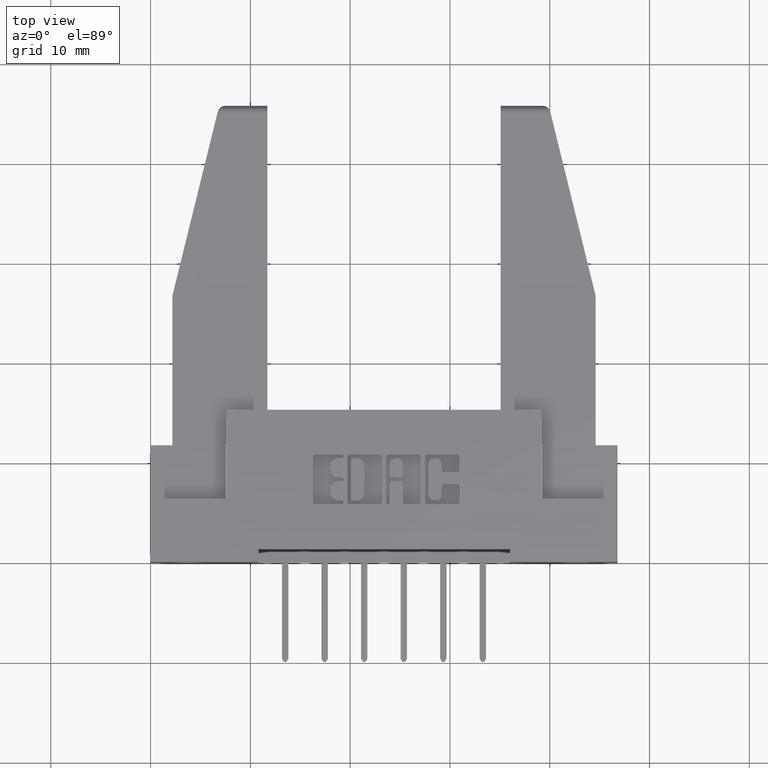
[diagram: clean part render]
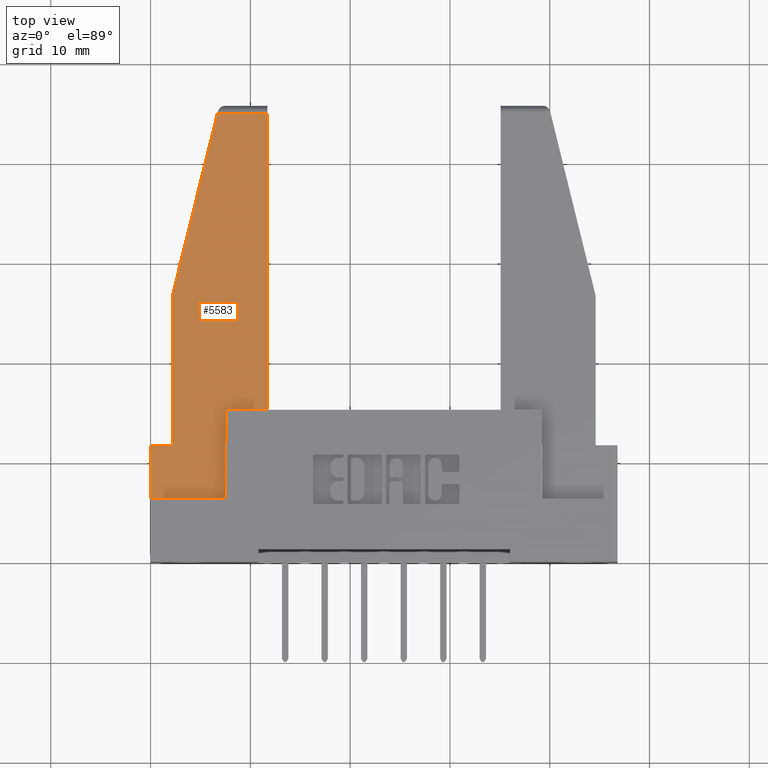
[diagram: same view with one face highlighted and labeled with its STEP entity id]
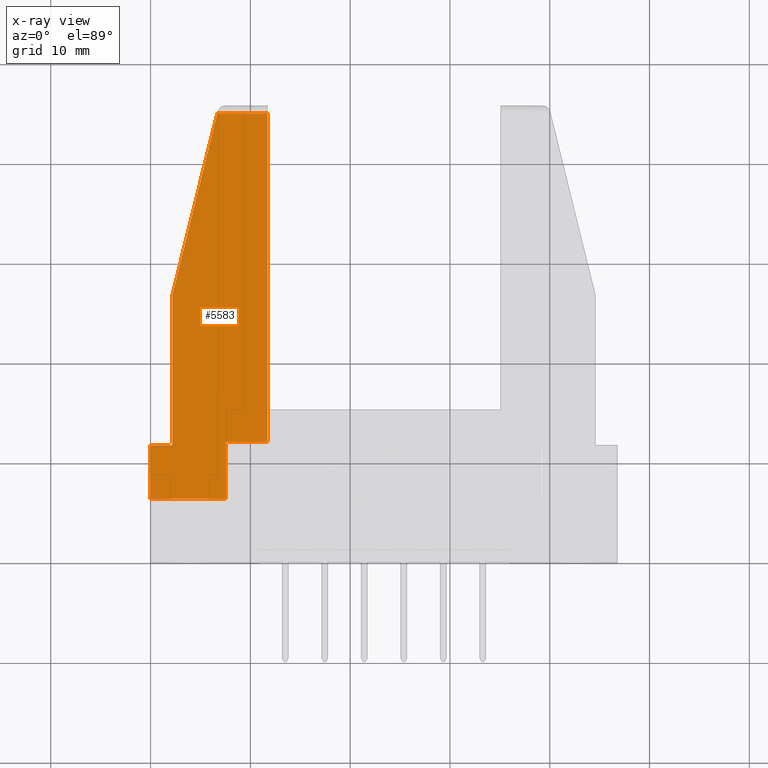
[diagram: x-ray of the same camera — body ghosted, the highlighted face saturated]
A machine part, top view. The second image highlights one B-rep face of the part: STEP entity #5583.
The next image is the same camera in x-ray: the body ghosted, the highlighted face saturated — about 0% of this face is hidden behind the body in this view.
In plain terms, the highlighted planar face has unit normal (0, 0, 1).
Its self-contained STEP definition (entity closure, byte-faithful):
#2 = VERTEX_POINT ( 'NONE', #8088 ) ;
#62 = DIRECTION ( 'NONE',  ( -0.0000000000000000000, 0.0000000000000000000, 1.000000000000000000 ) ) ;
#100 = VERTEX_POINT ( 'NONE', #4619 ) ;
#213 = VECTOR ( 'NONE', #4187, 39.37007874015748900 ) ;
#431 = AXIS2_PLACEMENT_3D ( 'NONE', #2852, #62, #8154 ) ;
#521 = DIRECTION ( 'NONE',  ( 0.0000000000000000000, 1.000000000000000000, 0.0000000000000000000 ) ) ;
#879 = CARTESIAN_POINT ( 'NONE',  ( -7.582401355855259500E-033, 1.520000000000000200, 0.0000000000000000000 ) ) ;
#1002 = LINE ( 'NONE', #879, #8183 ) ;
#1033 = VECTOR ( 'NONE', #521, 39.37007874015748100 ) ;
#1069 = CARTESIAN_POINT ( 'NONE',  ( 0.08600000000000011800, 0.2099999999999999400, 0.0000000000000000000 ) ) ;
#1161 = EDGE_CURVE ( 'NONE', #10061, #6131, #8447, .T. ) ;
#1418 = DIRECTION ( 'NONE',  ( -1.000000000000000000, -0.0000000000000000000, -0.0000000000000000000 ) ) ;
#2122 = LINE ( 'NONE', #3268, #6450 ) ;
#2125 = CARTESIAN_POINT ( 'NONE',  ( 5.427945026982818800E-017, 0.2099999999999999400, 0.0000000000000000000 ) ) ;
#2226 = VERTEX_POINT ( 'NONE', #10677 ) ;
#2852 = CARTESIAN_POINT ( 'NONE',  ( -7.582401355855259500E-033, 0.0000000000000000000, 0.0000000000000000000 ) ) ;
#2948 = LINE ( 'NONE', #8715, #11348 ) ;
#3061 = ORIENTED_EDGE ( 'NONE', *, *, #8023, .T. ) ;
#3265 = VERTEX_POINT ( 'NONE', #1069 ) ;
#3268 = CARTESIAN_POINT ( 'NONE',  ( 0.2969999999999999900, 0.2230000000000000300, 0.0000000000000000000 ) ) ;
#3373 = EDGE_CURVE ( 'NONE', #2, #9080, #2122, .T. ) ;
#3642 = ORIENTED_EDGE ( 'NONE', *, *, #11245, .T. ) ;
#3676 = EDGE_CURVE ( 'NONE', #100, #3265, #2948, .T. ) ;
#3797 = PLANE ( 'NONE',  #431 ) ;
#4187 = DIRECTION ( 'NONE',  ( -0.2394884713086026000, -0.9708992080078490100, 0.0000000000000000000 ) ) ;
#4236 = LINE ( 'NONE', #8198, #10131 ) ;
#4341 = CARTESIAN_POINT ( 'NONE',  ( 0.0000000000000000000, 0.0000000000000000000, 0.0000000000000000000 ) ) ;
#4415 = DIRECTION ( 'NONE',  ( -1.000000000000000000, 0.0000000000000000000, -0.0000000000000000000 ) ) ;
#4619 = CARTESIAN_POINT ( 'NONE',  ( 0.08600000000000013200, 0.8000000000000000400, 0.0000000000000000000 ) ) ;
#4811 = VECTOR ( 'NONE', #6683, 39.37007874015748100 ) ;
#5042 = DIRECTION ( 'NONE',  ( 1.000000000000000000, 0.0000000000000000000, 0.0000000000000000000 ) ) ;
#5367 = ORIENTED_EDGE ( 'NONE', *, *, #9909, .T. ) ;
#5373 = LINE ( 'NONE', #8588, #1033 ) ;
#5583 = ADVANCED_FACE ( 'NONE', ( #10896 ), #3797, .T. ) ;
#6036 = VECTOR ( 'NONE', #7981, 39.37007874015748100 ) ;
#6118 = EDGE_CURVE ( 'NONE', #2226, #100, #7517, .T. ) ;
#6131 = VERTEX_POINT ( 'NONE', #11303 ) ;
#6140 = CARTESIAN_POINT ( 'NONE',  ( 0.0000000000000000000, 0.0000000000000000000, 0.0000000000000000000 ) ) ;
#6450 = VECTOR ( 'NONE', #5042, 39.37007874015748100 ) ;
#6496 = VECTOR ( 'NONE', #1418, 39.37007874015748100 ) ;
#6657 = ORIENTED_EDGE ( 'NONE', *, *, #3676, .T. ) ;
#6664 = ORIENTED_EDGE ( 'NONE', *, *, #6118, .T. ) ;
#6683 = DIRECTION ( 'NONE',  ( 5.146661630867112300E-017, 1.000000000000000000, 0.0000000000000000000 ) ) ;
#6691 = VERTEX_POINT ( 'NONE', #9731 ) ;
#6917 = VERTEX_POINT ( 'NONE', #2125 ) ;
#7292 = ORIENTED_EDGE ( 'NONE', *, *, #3373, .T. ) ;
#7463 = CARTESIAN_POINT ( 'NONE',  ( 0.4610000000000000200, 0.2230000000000000300, 0.0000000000000000000 ) ) ;
#7517 = LINE ( 'NONE', #10443, #213 ) ;
#7841 = DIRECTION ( 'NONE',  ( -2.893906772949430800E-017, -1.000000000000000000, 0.0000000000000000000 ) ) ;
#7981 = DIRECTION ( 'NONE',  ( 1.000000000000000000, 0.0000000000000000000, 0.0000000000000000000 ) ) ;
#8023 = EDGE_CURVE ( 'NONE', #6917, #10061, #4236, .T. ) ;
#8088 = CARTESIAN_POINT ( 'NONE',  ( 0.2969999999999999900, 0.2230000000000000300, 0.0000000000000000000 ) ) ;
#8154 = DIRECTION ( 'NONE',  ( 1.000000000000000000, 0.0000000000000000000, 0.0000000000000000000 ) ) ;
#8183 = VECTOR ( 'NONE', #4415, 39.37007874015748100 ) ;
#8198 = CARTESIAN_POINT ( 'NONE',  ( 5.427945026982818800E-017, 0.2099999999999999400, 0.0000000000000000000 ) ) ;
#8342 = ORIENTED_EDGE ( 'NONE', *, *, #9776, .T. ) ;
#8447 = LINE ( 'NONE', #6140, #6036 ) ;
#8588 = CARTESIAN_POINT ( 'NONE',  ( 0.2969999999999999900, 0.0000000000000000000, 0.0000000000000000000 ) ) ;
#8715 = CARTESIAN_POINT ( 'NONE',  ( 0.08600000000000013200, 0.8000000000000000400, 0.0000000000000000000 ) ) ;
#9080 = VERTEX_POINT ( 'NONE', #11548 ) ;
#9114 = DIRECTION ( 'NONE',  ( -2.584735727134676700E-016, -1.000000000000000000, 0.0000000000000000000 ) ) ;
#9731 = CARTESIAN_POINT ( 'NONE',  ( 0.4610000000000000800, 1.519999999999999600, 0.0000000000000000000 ) ) ;
#9776 = EDGE_CURVE ( 'NONE', #9080, #6691, #11128, .T. ) ;
#9780 = ORIENTED_EDGE ( 'NONE', *, *, #9900, .T. ) ;
#9900 = EDGE_CURVE ( 'NONE', #3265, #6917, #10862, .T. ) ;
#9909 = EDGE_CURVE ( 'NONE', #6131, #2, #5373, .T. ) ;
#10061 = VERTEX_POINT ( 'NONE', #4341 ) ;
#10131 = VECTOR ( 'NONE', #9114, 39.37007874015748100 ) ;
#10355 = EDGE_LOOP ( 'NONE', ( #8342, #3642, #6664, #6657, #9780, #3061, #10857, #5367, #7292 ) ) ;
#10443 = CARTESIAN_POINT ( 'NONE',  ( 0.2710000000000000200, 1.550000000000000000, 0.0000000000000000000 ) ) ;
#10677 = CARTESIAN_POINT ( 'NONE',  ( 0.2636000000000000600, 1.520000000000000200, 0.0000000000000000000 ) ) ;
#10857 = ORIENTED_EDGE ( 'NONE', *, *, #1161, .T. ) ;
#10862 = LINE ( 'NONE', #11306, #6496 ) ;
#10896 = FACE_OUTER_BOUND ( 'NONE', #10355, .T. ) ;
#11128 = LINE ( 'NONE', #7463, #4811 ) ;
#11245 = EDGE_CURVE ( 'NONE', #6691, #2226, #1002, .T. ) ;
#11303 = CARTESIAN_POINT ( 'NONE',  ( 0.2969999999999999900, 0.0000000000000000000, 0.0000000000000000000 ) ) ;
#11306 = CARTESIAN_POINT ( 'NONE',  ( 5.427945026982818800E-017, 0.2099999999999999400, 0.0000000000000000000 ) ) ;
#11348 = VECTOR ( 'NONE', #7841, 39.37007874015748100 ) ;
#11548 = CARTESIAN_POINT ( 'NONE',  ( 0.4610000000000000200, 0.2230000000000000300, 0.0000000000000000000 ) ) ;